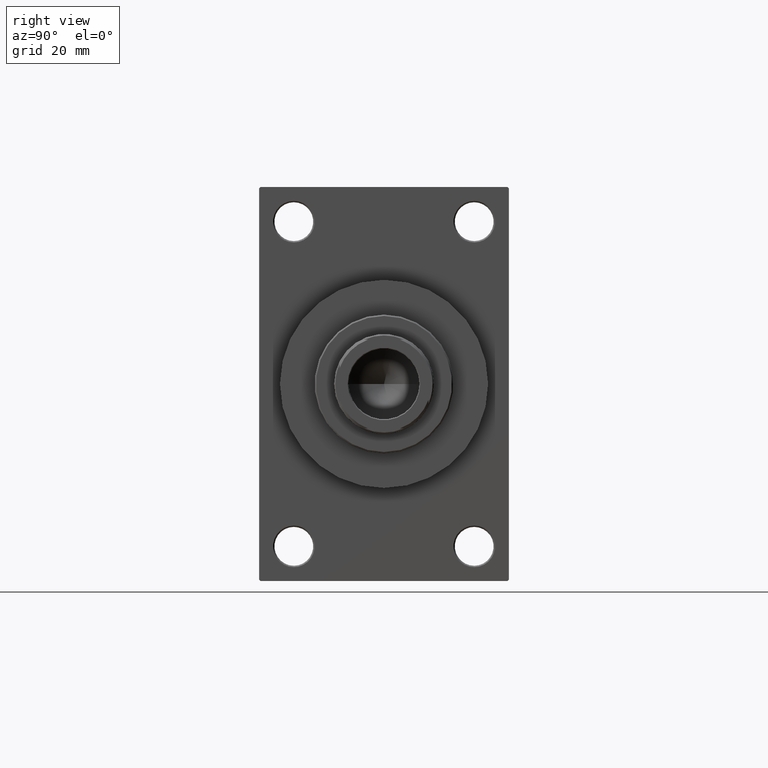
[diagram: clean part render]
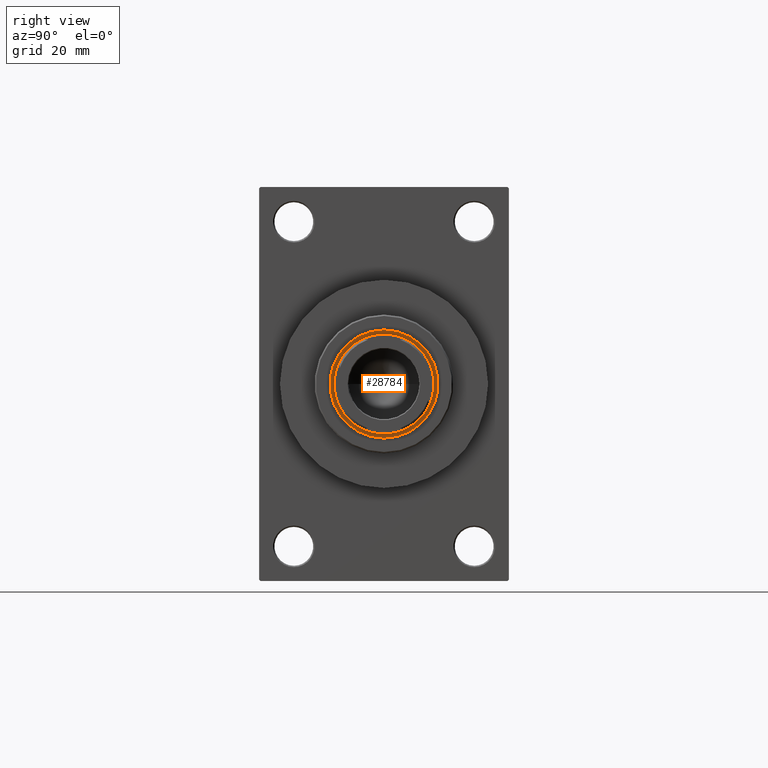
[diagram: same view with one face highlighted and labeled with its STEP entity id]
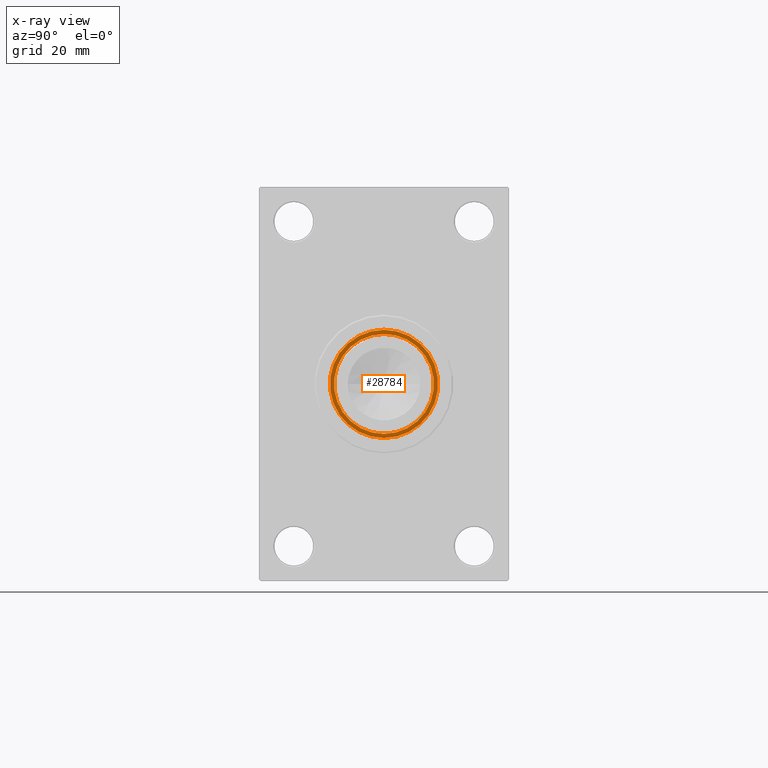
[diagram: x-ray of the same camera — body ghosted, the highlighted face saturated]
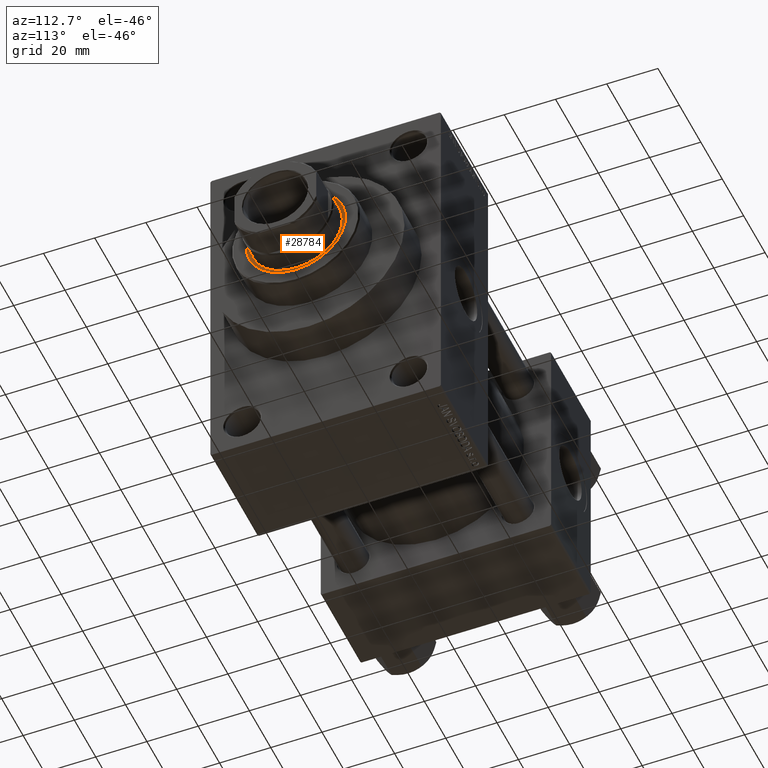
[diagram: same view with one face highlighted and labeled with its STEP entity id]
A machine part, right view. The second image highlights one B-rep face of the part: STEP entity #28784.
The next image is the same camera in x-ray: the body ghosted, the highlighted face saturated — about 0% of this face is hidden behind the body in this view.
A second angle (auxiliary view) of the same face is appended — the face is thin or edge-on in the first view.
In plain terms, the highlighted planar face has unit normal (1, -0, -0).
Its self-contained STEP definition (entity closure, byte-faithful):
#574 = VERTEX_POINT ( 'NONE', #34960 ) ;
#2387 = ORIENTED_EDGE ( 'NONE', *, *, #33491, .T. ) ;
#4031 = EDGE_CURVE ( 'NONE', #41863, #41619, #23919, .T. ) ;
#4161 = AXIS2_PLACEMENT_3D ( 'NONE', #42966, #35811, #46793 ) ;
#4396 = EDGE_LOOP ( 'NONE', ( #5612, #2387 ) ) ;
#4996 = CIRCLE ( 'NONE', #9565, 18.00000000000000000 ) ;
#5583 = DIRECTION ( 'NONE',  ( 1.000000000000000000, 0.000000000000000000, 0.000000000000000000 ) ) ;
#5612 = ORIENTED_EDGE ( 'NONE', *, *, #10440, .T. ) ;
#8048 = AXIS2_PLACEMENT_3D ( 'NONE', #41382, #8686, #5583 ) ;
#8686 = DIRECTION ( 'NONE',  ( 0.000000000000000000, 0.000000000000000000, 1.000000000000000000 ) ) ;
#9565 = AXIS2_PLACEMENT_3D ( 'NONE', #34862, #28388, #42977 ) ;
#9606 = DIRECTION ( 'NONE',  ( 0.000000000000000000, 0.000000000000000000, 1.000000000000000000 ) ) ;
#9843 = CARTESIAN_POINT ( 'NONE',  ( 0.000000000000000000, 0.000000000000000000, 54.76000000000000512 ) ) ;
#10440 = EDGE_CURVE ( 'NONE', #574, #37686, #39281, .T. ) ;
#11190 = EDGE_CURVE ( 'NONE', #41619, #41863, #4996, .T. ) ;
#11797 = CIRCLE ( 'NONE', #44590, 19.50000000000000000 ) ;
#12567 = CARTESIAN_POINT ( 'NONE',  ( 18.00000000000000000, 0.000000000000000000, 54.76000000000000512 ) ) ;
#14722 = EDGE_LOOP ( 'NONE', ( #44999, #19561 ) ) ;
#18954 = DIRECTION ( 'NONE',  ( 0.000000000000000000, 0.000000000000000000, 1.000000000000000000 ) ) ;
#19561 = ORIENTED_EDGE ( 'NONE', *, *, #11190, .T. ) ;
#20554 = DIRECTION ( 'NONE',  ( 1.000000000000000000, 0.000000000000000000, 0.000000000000000000 ) ) ;
#23919 = CIRCLE ( 'NONE', #4161, 18.00000000000000000 ) ;
#26039 = CARTESIAN_POINT ( 'NONE',  ( -19.50000000000000000, 2.388061258337338939E-15, 54.76000000000000512 ) ) ;
#26960 = AXIS2_PLACEMENT_3D ( 'NONE', #37815, #18954, #45201 ) ;
#28388 = DIRECTION ( 'NONE',  ( -0.000000000000000000, -0.000000000000000000, -1.000000000000000000 ) ) ;
#28784 = ADVANCED_FACE ( 'NONE', ( #38276, #33526 ), #45449, .T. ) ;
#33491 = EDGE_CURVE ( 'NONE', #37686, #574, #11797, .T. ) ;
#33526 = FACE_BOUND ( 'NONE', #14722, .T. ) ;
#34862 = CARTESIAN_POINT ( 'NONE',  ( 0.000000000000000000, 0.000000000000000000, 54.76000000000000512 ) ) ;
#34960 = CARTESIAN_POINT ( 'NONE',  ( 19.50000000000000000, 0.000000000000000000, 54.76000000000000512 ) ) ;
#35811 = DIRECTION ( 'NONE',  ( -0.000000000000000000, -0.000000000000000000, -1.000000000000000000 ) ) ;
#37686 = VERTEX_POINT ( 'NONE', #26039 ) ;
#37712 = CARTESIAN_POINT ( 'NONE',  ( -18.00000000000000000, 2.204364238465235033E-15, 54.76000000000000512 ) ) ;
#37815 = CARTESIAN_POINT ( 'NONE',  ( 0.000000000000000000, 0.000000000000000000, 54.76000000000000512 ) ) ;
#38276 = FACE_OUTER_BOUND ( 'NONE', #4396, .T. ) ;
#39281 = CIRCLE ( 'NONE', #8048, 19.50000000000000000 ) ;
#41382 = CARTESIAN_POINT ( 'NONE',  ( 0.000000000000000000, 0.000000000000000000, 54.76000000000000512 ) ) ;
#41619 = VERTEX_POINT ( 'NONE', #37712 ) ;
#41863 = VERTEX_POINT ( 'NONE', #12567 ) ;
#42966 = CARTESIAN_POINT ( 'NONE',  ( 0.000000000000000000, 0.000000000000000000, 54.76000000000000512 ) ) ;
#42977 = DIRECTION ( 'NONE',  ( 1.000000000000000000, 0.000000000000000000, 0.000000000000000000 ) ) ;
#44590 = AXIS2_PLACEMENT_3D ( 'NONE', #9843, #9606, #20554 ) ;
#44999 = ORIENTED_EDGE ( 'NONE', *, *, #4031, .T. ) ;
#45201 = DIRECTION ( 'NONE',  ( 1.000000000000000000, 0.000000000000000000, -0.000000000000000000 ) ) ;
#45449 = PLANE ( 'NONE',  #26960 ) ;
#46793 = DIRECTION ( 'NONE',  ( 1.000000000000000000, 0.000000000000000000, 0.000000000000000000 ) ) ;